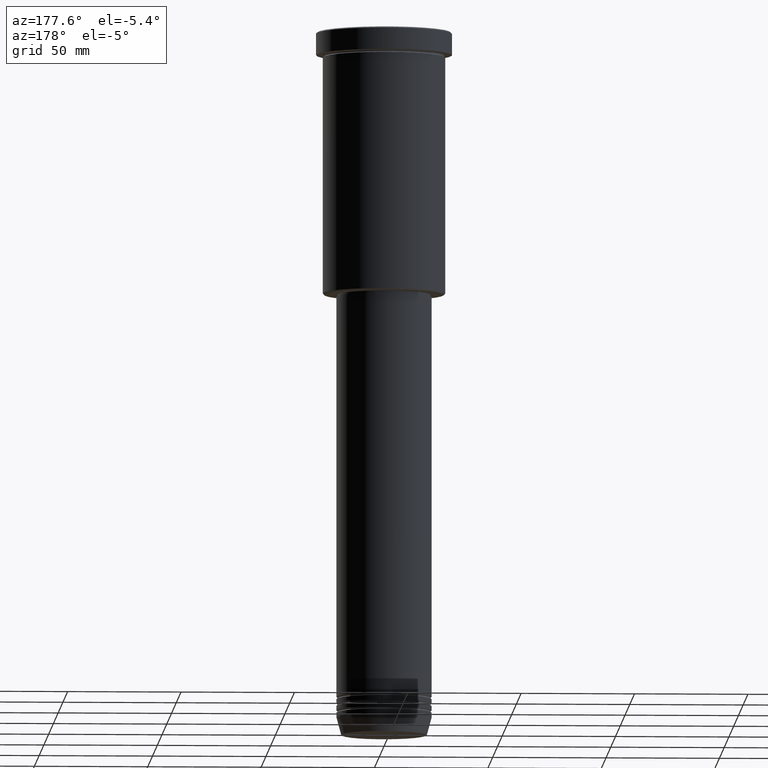
[diagram: clean part render]
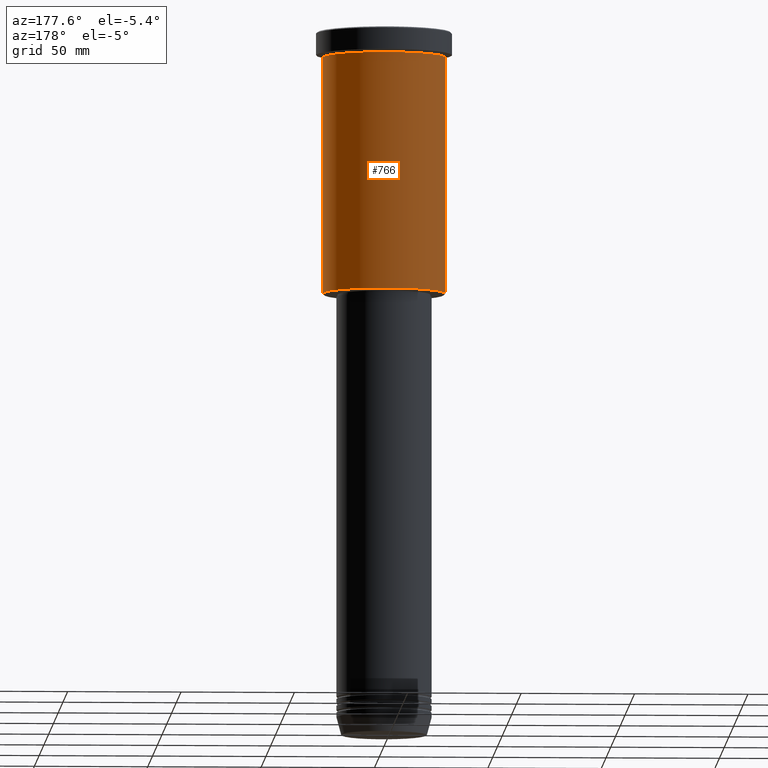
[diagram: same view with one face highlighted and labeled with its STEP entity id]
A machine part, auxiliary view. The second image highlights one B-rep face of the part: STEP entity #766.
In plain terms, the highlighted cylindrical surface (partial cylindrical patch) has radius 27 mm, axis along (-0, -0, 1).
Its self-contained STEP definition (entity closure, byte-faithful):
#34 = AXIS2_PLACEMENT_3D ( 'NONE', #1149, #952, #972 ) ;
#70 = VERTEX_POINT ( 'NONE', #918 ) ;
#91 = FACE_OUTER_BOUND ( 'NONE', #887, .T. ) ;
#96 = AXIS2_PLACEMENT_3D ( 'NONE', #1084, #1163, #542 ) ;
#99 = AXIS2_PLACEMENT_3D ( 'NONE', #908, #1099, #911 ) ;
#165 = DIRECTION ( 'NONE',  ( -0.000000000000000000, -0.000000000000000000, 1.000000000000000000 ) ) ;
#239 = CARTESIAN_POINT ( 'NONE',  ( -27.00000000000000355, 3.306546357697854128E-15, 0.000000000000000000 ) ) ;
#340 = VERTEX_POINT ( 'NONE', #591 ) ;
#341 = CARTESIAN_POINT ( 'NONE',  ( 27.00000000000000355, 0.000000000000000000, -115.4999999999999716 ) ) ;
#400 = CIRCLE ( 'NONE', #34, 27.00000000000000355 ) ;
#412 = VERTEX_POINT ( 'NONE', #341 ) ;
#453 = CIRCLE ( 'NONE', #96, 27.00000000000000355 ) ;
#504 = ORIENTED_EDGE ( 'NONE', *, *, #732, .T. ) ;
#534 = CARTESIAN_POINT ( 'NONE',  ( 27.00000000000000355, 0.000000000000000000, -10.99999999999999289 ) ) ;
#542 = DIRECTION ( 'NONE',  ( -1.000000000000000000, 0.000000000000000000, 0.000000000000000000 ) ) ;
#591 = CARTESIAN_POINT ( 'NONE',  ( -27.00000000000000355, 3.306546357697854128E-15, -115.4999999999999716 ) ) ;
#600 = EDGE_CURVE ( 'NONE', #1177, #70, #400, .T. ) ;
#732 = EDGE_CURVE ( 'NONE', #340, #70, #1060, .T. ) ;
#737 = VECTOR ( 'NONE', #165, 1000.000000000000000 ) ;
#742 = EDGE_CURVE ( 'NONE', #412, #340, #453, .T. ) ;
#766 = ADVANCED_FACE ( 'NONE', ( #91 ), #1170, .T. ) ;
#851 = EDGE_CURVE ( 'NONE', #412, #1177, #992, .T. ) ;
#872 = ORIENTED_EDGE ( 'NONE', *, *, #851, .F. ) ;
#887 = EDGE_LOOP ( 'NONE', ( #997, #504, #1055, #872 ) ) ;
#904 = CARTESIAN_POINT ( 'NONE',  ( 27.00000000000000355, 0.000000000000000000, 0.000000000000000000 ) ) ;
#908 = CARTESIAN_POINT ( 'NONE',  ( 0.000000000000000000, 0.000000000000000000, 0.000000000000000000 ) ) ;
#911 = DIRECTION ( 'NONE',  ( 1.000000000000000000, 0.000000000000000000, 0.000000000000000000 ) ) ;
#918 = CARTESIAN_POINT ( 'NONE',  ( -27.00000000000000355, 3.306546357697854128E-15, -10.99999999999999289 ) ) ;
#952 = DIRECTION ( 'NONE',  ( -0.000000000000000000, -0.000000000000000000, 1.000000000000000000 ) ) ;
#972 = DIRECTION ( 'NONE',  ( 1.000000000000000000, 0.000000000000000000, 0.000000000000000000 ) ) ;
#992 = LINE ( 'NONE', #904, #1142 ) ;
#997 = ORIENTED_EDGE ( 'NONE', *, *, #742, .T. ) ;
#1055 = ORIENTED_EDGE ( 'NONE', *, *, #600, .F. ) ;
#1060 = LINE ( 'NONE', #239, #737 ) ;
#1084 = CARTESIAN_POINT ( 'NONE',  ( 0.000000000000000000, 0.000000000000000000, -115.4999999999999716 ) ) ;
#1094 = DIRECTION ( 'NONE',  ( -0.000000000000000000, -0.000000000000000000, 1.000000000000000000 ) ) ;
#1099 = DIRECTION ( 'NONE',  ( -0.000000000000000000, -0.000000000000000000, 1.000000000000000000 ) ) ;
#1142 = VECTOR ( 'NONE', #1094, 1000.000000000000000 ) ;
#1149 = CARTESIAN_POINT ( 'NONE',  ( 0.000000000000000000, 0.000000000000000000, -10.99999999999999289 ) ) ;
#1163 = DIRECTION ( 'NONE',  ( -0.000000000000000000, -0.000000000000000000, 1.000000000000000000 ) ) ;
#1170 = CYLINDRICAL_SURFACE ( 'NONE', #99, 27.00000000000000355 ) ;
#1177 = VERTEX_POINT ( 'NONE', #534 ) ;